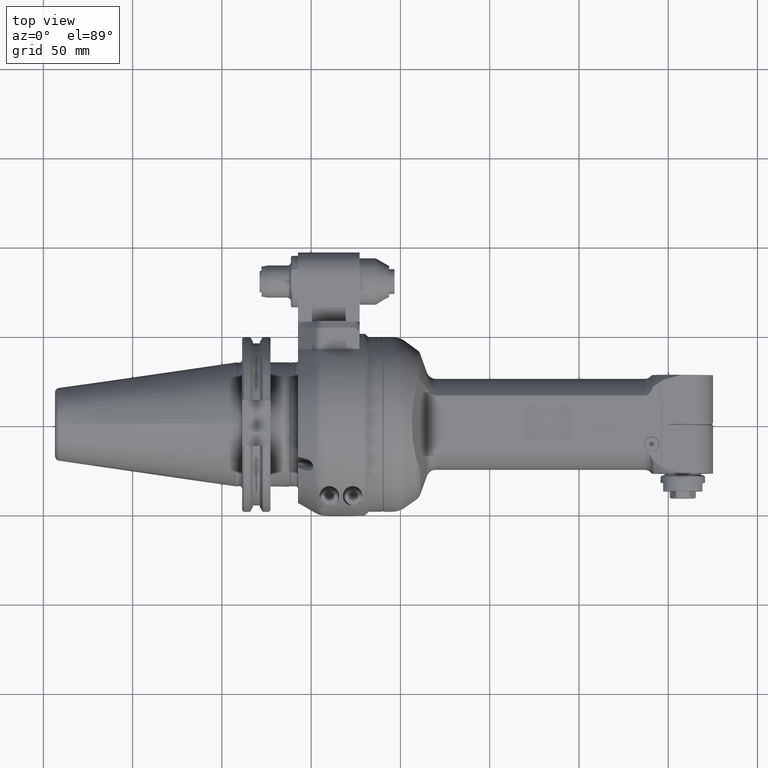
[diagram: clean part render]
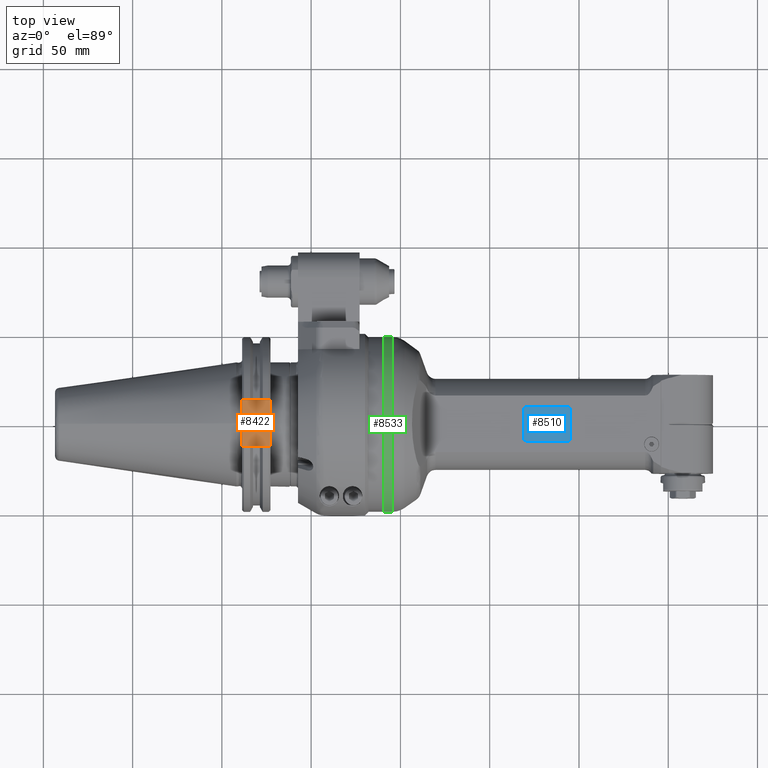
[diagram: same view with three faces highlighted in distinct colors, each labeled with its STEP entity id]
A machine part, top view with three faces highlighted in distinct colors.
Their STEP definitions:

[orange] entity #8422 — the highlighted planar face has unit normal (0, -0, 1).
#542=FACE_BOUND('',#1880,.T.);
#923=PLANE('',#9191);
#1359=FACE_OUTER_BOUND('',#1879,.T.);
#1879=EDGE_LOOP('',(#6789,#6790,#6791,#6792));
#1880=EDGE_LOOP('',(#6793));
#2444=LINE('',#54707,#2993);
#2458=LINE('',#54766,#3007);
#2459=LINE('',#54771,#3008);
#2460=LINE('',#54772,#3009);
#2993=VECTOR('',#10722,15.875);
#3007=VECTOR('',#10778,25.908);
#3008=VECTOR('',#10783,15.875);
#3009=VECTOR('',#10784,25.908);
#3452=CIRCLE('',#9192,4.7625);
#4039=VERTEX_POINT('',#54704);
#4040=VERTEX_POINT('',#54706);
#4058=VERTEX_POINT('',#54764);
#4060=VERTEX_POINT('',#54770);
#4061=VERTEX_POINT('',#54773);
#5010=EDGE_CURVE('',#4039,#4040,#2444,.T.);
#5038=EDGE_CURVE('',#4058,#4039,#2458,.T.);
#5040=EDGE_CURVE('',#4060,#4058,#2459,.T.);
#5041=EDGE_CURVE('',#4040,#4060,#2460,.T.);
#5042=EDGE_CURVE('',#4061,#4061,#3452,.T.);
#6789=ORIENTED_EDGE('',*,*,#5010,.F.);
#6790=ORIENTED_EDGE('',*,*,#5038,.F.);
#6791=ORIENTED_EDGE('',*,*,#5040,.F.);
#6792=ORIENTED_EDGE('',*,*,#5041,.F.);
#6793=ORIENTED_EDGE('',*,*,#5042,.T.);
#8422=ADVANCED_FACE('',(#1359,#542),#923,.T.);
#9191=AXIS2_PLACEMENT_3D('',#54769,#10781,#10782);
#9192=AXIS2_PLACEMENT_3D('',#54774,#10785,#10786);
#10722=DIRECTION('',(-1.,0.,0.));
#10778=DIRECTION('',(0.,-1.,0.));
#10781=DIRECTION('center_axis',(0.,0.,1.));
#10782=DIRECTION('ref_axis',(1.,0.,0.));
#10783=DIRECTION('',(1.,0.,0.));
#10784=DIRECTION('',(0.,1.,0.));
#10785=DIRECTION('center_axis',(0.,0.,-1.));
#10786=DIRECTION('ref_axis',(0.,1.,0.));
#54704=CARTESIAN_POINT('',(19.05,-12.954,37.719));
#54706=CARTESIAN_POINT('',(3.175,-12.954,37.719));
#54707=CARTESIAN_POINT('',(19.05,-12.954,37.719));
#54764=CARTESIAN_POINT('',(19.05,12.954,37.719));
#54766=CARTESIAN_POINT('',(19.05,12.954,37.719));
#54769=CARTESIAN_POINT('Origin',(20.633374,-1.677305,37.719));
#54770=CARTESIAN_POINT('',(3.175,12.954,37.719));
#54771=CARTESIAN_POINT('',(3.175,12.954,37.719));
#54772=CARTESIAN_POINT('',(3.175,-12.954,37.719));
#54773=CARTESIAN_POINT('',(11.1125,-4.7625,37.719));
#54774=CARTESIAN_POINT('Origin',(11.1125,0.,37.719));

[blue] entity #8510 — the highlighted planar face has unit normal (0, 0.0017, 1).
#969=PLANE('',#9355);
#1447=FACE_OUTER_BOUND('',#1978,.T.);
#1978=EDGE_LOOP('',(#7234,#7235,#7236,#7237,#7238,#7239,#7240,#7241));
#2566=LINE('',#55348,#3115);
#2567=LINE('',#55352,#3116);
#2568=LINE('',#55356,#3117);
#2569=LINE('',#55359,#3118);
#3115=VECTOR('',#11218,15.5);
#3116=VECTOR('',#11221,22.5);
#3117=VECTOR('',#11224,15.5);
#3118=VECTOR('',#11227,22.5);
#3522=CIRCLE('',#9353,2.);
#3524=CIRCLE('',#9356,2.);
#3525=CIRCLE('',#9357,2.);
#3526=CIRCLE('',#9358,2.);
#4199=VERTEX_POINT('',#55338);
#4200=VERTEX_POINT('',#55339);
#4203=VERTEX_POINT('',#55347);
#4204=VERTEX_POINT('',#55349);
#4205=VERTEX_POINT('',#55351);
#4206=VERTEX_POINT('',#55353);
#4207=VERTEX_POINT('',#55355);
#4208=VERTEX_POINT('',#55357);
#5253=EDGE_CURVE('',#4199,#4200,#3522,.T.);
#5257=EDGE_CURVE('',#4199,#4203,#2566,.T.);
#5258=EDGE_CURVE('',#4203,#4204,#3524,.T.);
#5259=EDGE_CURVE('',#4204,#4205,#2567,.T.);
#5260=EDGE_CURVE('',#4206,#4205,#3525,.T.);
#5261=EDGE_CURVE('',#4206,#4207,#2568,.T.);
#5262=EDGE_CURVE('',#4208,#4207,#3526,.T.);
#5263=EDGE_CURVE('',#4200,#4208,#2569,.T.);
#7234=ORIENTED_EDGE('',*,*,#5253,.F.);
#7235=ORIENTED_EDGE('',*,*,#5257,.T.);
#7236=ORIENTED_EDGE('',*,*,#5258,.T.);
#7237=ORIENTED_EDGE('',*,*,#5259,.T.);
#7238=ORIENTED_EDGE('',*,*,#5260,.F.);
#7239=ORIENTED_EDGE('',*,*,#5261,.T.);
#7240=ORIENTED_EDGE('',*,*,#5262,.F.);
#7241=ORIENTED_EDGE('',*,*,#5263,.F.);
#8510=ADVANCED_FACE('',(#1447),#969,.T.);
#9353=AXIS2_PLACEMENT_3D('',#55340,#11210,#11211);
#9355=AXIS2_PLACEMENT_3D('',#55346,#11216,#11217);
#9356=AXIS2_PLACEMENT_3D('',#55350,#11219,#11220);
#9357=AXIS2_PLACEMENT_3D('',#55354,#11222,#11223);
#9358=AXIS2_PLACEMENT_3D('',#55358,#11225,#11226);
#11210=DIRECTION('center_axis',(0.,0.,-1.));
#11211=DIRECTION('ref_axis',(1.,0.,0.));
#11216=DIRECTION('center_axis',(0.,0.,1.));
#11217=DIRECTION('ref_axis',(1.,0.,0.));
#11218=DIRECTION('',(0.,1.,0.));
#11219=DIRECTION('center_axis',(0.,0.,1.));
#11220=DIRECTION('ref_axis',(1.,0.,0.));
#11221=DIRECTION('',(-1.,0.,0.));
#11222=DIRECTION('center_axis',(0.,0.,-1.));
#11223=DIRECTION('ref_axis',(-1.,0.,0.));
#11224=DIRECTION('',(0.,-1.,0.));
#11225=DIRECTION('center_axis',(0.,0.,-1.));
#11226=DIRECTION('ref_axis',(0.,-1.,0.));
#11227=DIRECTION('',(-1.,0.,0.));
#55338=CARTESIAN_POINT('',(144.25,-7.75,19.6));
#55339=CARTESIAN_POINT('',(142.25,-9.75,19.6));
#55340=CARTESIAN_POINT('Origin',(142.25,-7.75,19.6));
#55346=CARTESIAN_POINT('Origin',(0.,0.,19.6));
#55347=CARTESIAN_POINT('',(144.25,7.75,19.6));
#55348=CARTESIAN_POINT('',(144.25,-7.75,19.6));
#55349=CARTESIAN_POINT('',(142.25,9.75,19.6));
#55350=CARTESIAN_POINT('Origin',(142.25,7.75,19.6));
#55351=CARTESIAN_POINT('',(119.75,9.75,19.6));
#55352=CARTESIAN_POINT('',(142.25,9.75,19.6));
#55353=CARTESIAN_POINT('',(117.75,7.75,19.6));
#55354=CARTESIAN_POINT('Origin',(119.75,7.75,19.6));
#55355=CARTESIAN_POINT('',(117.75,-7.75,19.6));
#55356=CARTESIAN_POINT('',(117.75,7.75,19.6));
#55357=CARTESIAN_POINT('',(119.75,-9.75,19.6));
#55358=CARTESIAN_POINT('Origin',(119.75,-7.75,19.6));
#55359=CARTESIAN_POINT('',(142.25,-9.75,19.6));

[green] entity #8533 — the highlighted cylindrical surface (bore or boss wall) has radius 49 mm, axis along (-1, -0, 0).
#1470=FACE_OUTER_BOUND('',#2004,.T.);
#2004=EDGE_LOOP('',(#7394,#7395,#7396,#7397,#7398));
#2591=LINE('',#55789,#3140);
#3140=VECTOR('',#11369,49.);
#3554=CIRCLE('',#9414,49.);
#3556=CIRCLE('',#9417,49.);
#3557=CIRCLE('',#9418,49.);
#4277=VERTEX_POINT('',#55781);
#4278=VERTEX_POINT('',#55785);
#4279=VERTEX_POINT('',#55786);
#5354=EDGE_CURVE('',#4277,#4277,#3554,.T.);
#5356=EDGE_CURVE('',#4278,#4279,#3556,.T.);
#5357=EDGE_CURVE('',#4279,#4278,#3557,.T.);
#5358=EDGE_CURVE('',#4279,#4277,#2591,.T.);
#7394=ORIENTED_EDGE('',*,*,#5356,.F.);
#7395=ORIENTED_EDGE('',*,*,#5357,.F.);
#7396=ORIENTED_EDGE('',*,*,#5358,.T.);
#7397=ORIENTED_EDGE('',*,*,#5354,.F.);
#7398=ORIENTED_EDGE('',*,*,#5358,.F.);
#8156=CYLINDRICAL_SURFACE('',#9416,49.);
#8533=ADVANCED_FACE('',(#1470),#8156,.T.);
#9414=AXIS2_PLACEMENT_3D('',#55782,#11359,#11360);
#9416=AXIS2_PLACEMENT_3D('',#55784,#11363,#11364);
#9417=AXIS2_PLACEMENT_3D('',#55787,#11365,#11366);
#9418=AXIS2_PLACEMENT_3D('',#55788,#11367,#11368);
#11359=DIRECTION('center_axis',(1.,0.,0.));
#11360=DIRECTION('ref_axis',(0.,-1.,0.));
#11363=DIRECTION('center_axis',(-1.,0.,0.));
#11364=DIRECTION('ref_axis',(0.,1.,0.));
#11365=DIRECTION('center_axis',(-1.,0.,0.));
#11366=DIRECTION('ref_axis',(0.,0.942641491092172,-0.33380685923379));
#11367=DIRECTION('center_axis',(-1.,0.,0.));
#11368=DIRECTION('ref_axis',(0.,0.942641491092172,-0.33380685923379));
#11369=DIRECTION('',(1.,0.,0.));
#55781=CARTESIAN_POINT('',(44.21641453345,-49.,6.00076931582203E-15));
#55782=CARTESIAN_POINT('Origin',(44.21641453345,0.,0.));
#55784=CARTESIAN_POINT('Origin',(90.60163605758,0.,0.));
#55785=CARTESIAN_POINT('',(39.5,49.,6.00076931582203E-15));
#55786=CARTESIAN_POINT('',(39.5,-49.,6.00076931582203E-15));
#55787=CARTESIAN_POINT('Origin',(39.5,0.,0.));
#55788=CARTESIAN_POINT('Origin',(39.5,0.,0.));
#55789=CARTESIAN_POINT('',(90.60163605758,-49.,6.00076931582203E-15));